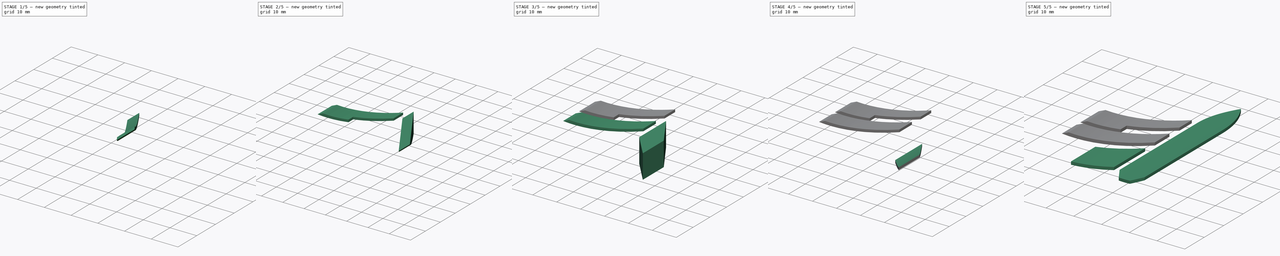
[diagram: build sequence overview — one tinted view per stage of 5, left to right]
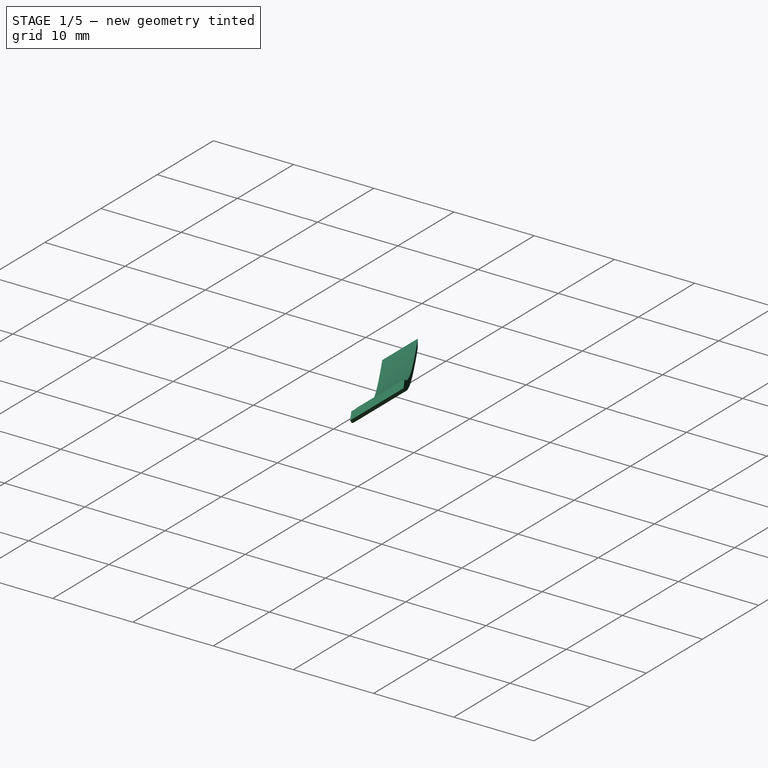
[diagram: stage 1 of 5 — iso view after this stage's code; geometry added in this stage tinted green]
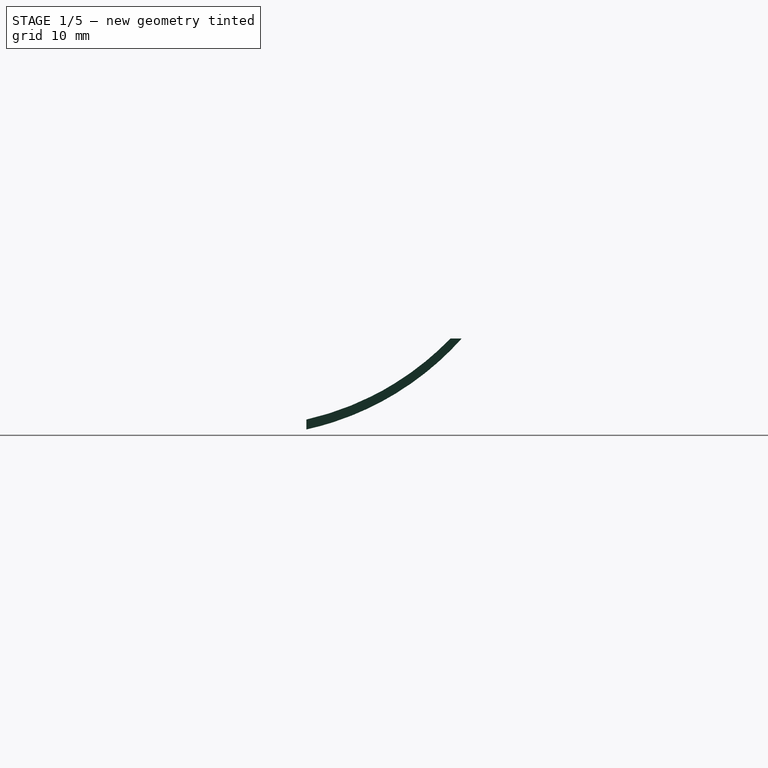
[diagram: stage 1 of 5 — front view after this stage's code; geometry added in this stage tinted green]
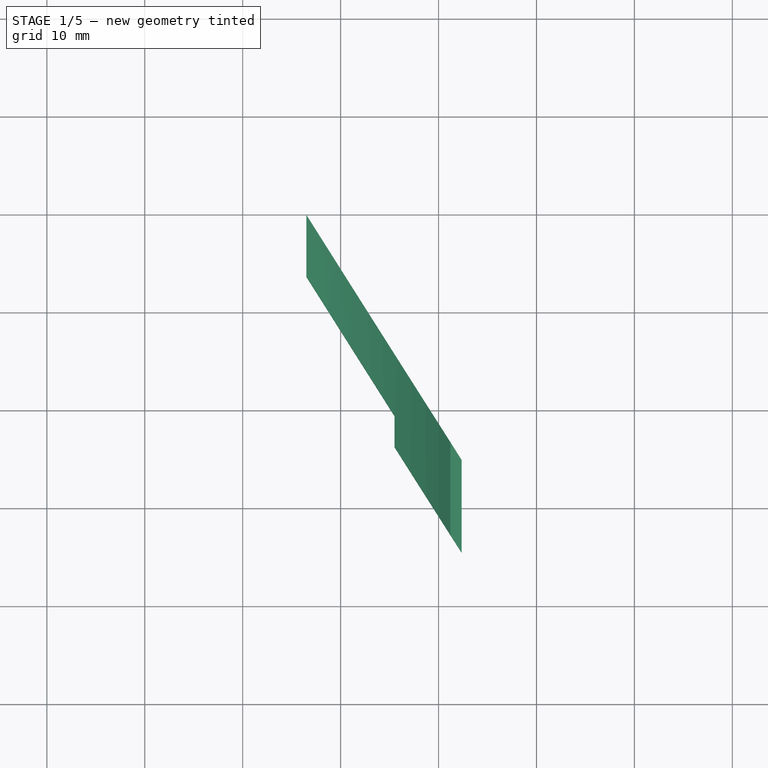
[diagram: stage 1 of 5 — top view after this stage's code; geometry added in this stage tinted green]
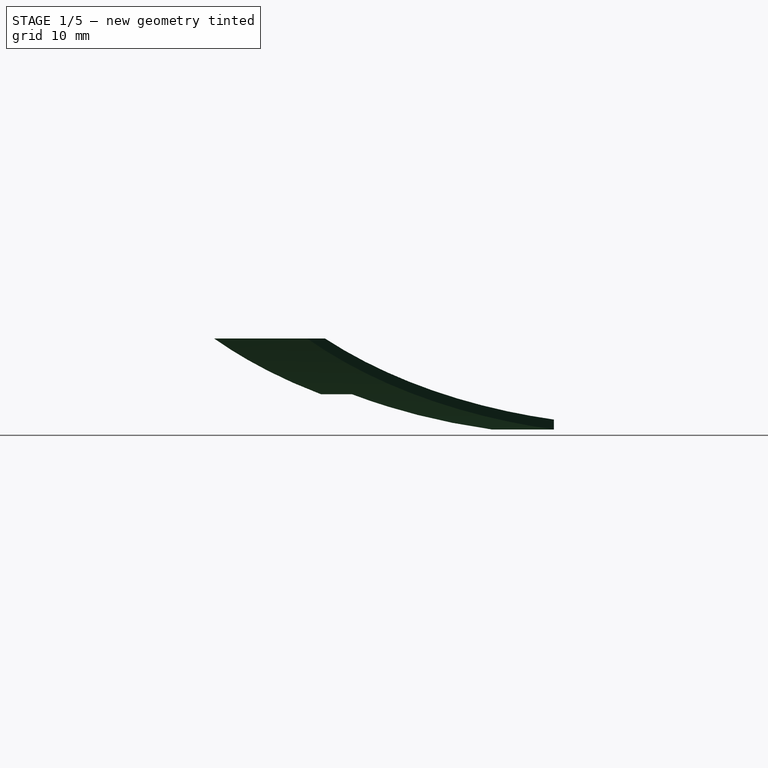
[diagram: stage 1 of 5 — right view after this stage's code; geometry added in this stage tinted green]
FCSTD DOCUMENT  (FreeCAD 1.0R39319 (Git))
Label: logo
License: All rights reserved
LicenseURL: https://en.wikipedia.org/wiki/All_rights_reserved
objects: Sketcher::SketchObject×13, PartDesign::Pocket×8, PartDesign::Body×7, PartDesign::Pad×4, PartDesign::Plane×4, PartDesign::FeatureBase×3, Part::Mirroring×3
note: 82 computed .brp shape members not serialized (recipe doc carries the construction recipe); baked Part::Feature solids carry a one-line shape summary decoded from their .brp

FEATURE [Sketcher::SketchObject] Sketch003
  ArcFitTolerance = 1e-06
  AttachmentSupport = -> [XY_Plane003]
  FullyConstrained = true
  MakeInternals = false
  MapMode = 5
  sketch-geometry (7):
    g0: LineSegment StartX=6.5 StartY=13.665 StartZ=0 EndX=6.5 EndY=19.995 EndZ=0
    g1: LineSegment StartX=6.5 StartY=19.995 StartZ=0 EndX=23.5 EndY=-7.005 EndZ=0
    g2: LineSegment StartX=23.5 StartY=-7.005 StartZ=0 EndX=23.5 EndY=-16.5 EndZ=0
    g3: LineSegment StartX=23.5 StartY=-16.5 StartZ=0 EndX=15.5 EndY=-3.79412 EndZ=0
    g4: LineSegment StartX=15.5 StartY=-3.79412 StartZ=0 EndX=15.5 EndY=-0.629118 EndZ=0
    g5: LineSegment StartX=15.5 StartY=-0.629118 StartZ=0 EndX=6.5 EndY=13.665 EndZ=0
    g6: LineSegment [constr] StartX=23.5 StartY=-18.5 StartZ=0 EndX=6.5 EndY=8.5 EndZ=0
  constraints (22):
    c: Coincident(g0,g1)
    c: Coincident(g1,g2)
    c: Coincident(g2,g3)
    c: Coincident(g3,g4)
    c: Coincident(g4,g5)
    c: Coincident(g5,g0)
    c: Vertical(g0)
    c: Vertical(g2)
    c: Vertical(g4)
    c: DistanceY(g0,g0) = 6.33
    c: DistanceY(g2,g1) = 9.495
    c: DistanceX(g-1,g0) = 6.5
    c: DistanceX(g0,g1) = 17
    c: Parallel(g5,g1)
    c: Parallel(g3,g1)
    c: DistanceY(g6,g-1) = 18.5
    c: DistanceX(g-1,g6) = 6.5
    c: DistanceX(g-1,g6) = 23.5
    c: DistanceY(g-1,g6) = 8.5
    c: Parallel(g3,g6)
    c: DistanceY(g6,g2) = 2
    c: DistanceX(g-1,g3) = 15.5
FEATURE [PartDesign::Pad] Pad003
  Direction = (0,0,1)
  Length = 10
  Length2 = 10
  Profile = -> Sketch003
  ReferenceAxis = -> Sketch003 [N_Axis]
  Refine = true
  Suppressed = false
  Type = 0
FEATURE [PartDesign::Body] Body002  label="mid_right_wing"
  AllowCompound = false
  Group = -> [Sketch002,Pad002,DatumPlane002,Sketch009,Pocket004,Sketch010,Pocket005]
  Origin = -> Origin002
  Tip = -> Pocket005
FEATURE [PartDesign::Plane] DatumPlane003
  AttachmentSupport = -> [Pad003]
  Length = 60
  MapMode = 7
  Placement = pos=(6.5,19.995,0) rot=(1,0,0;1.5708rad)
  ResizeMode = 0
  Width = 60
FEATURE [Sketcher::SketchObject] Sketch011
  ArcFitTolerance = 1e-06
  AttachmentSupport = -> [DatumPlane003]
  FullyConstrained = false
  MakeInternals = false
  MapMode = 5
  Placement = pos=(6.5,19.995,0) rot=(1,0,0;1.5708rad)
  sketch-geometry (2):
    g0: Circle CenterX=-6.5 CenterY=30 CenterZ=0 NormalX=0 NormalY=0 NormalZ=1 AngleXU=0 Radius=30
    g1: Circle CenterX=-6.5 CenterY=30 CenterZ=0 NormalX=0 NormalY=0 NormalZ=1 AngleXU=0 Radius=39.2924
  constraints (4):
    c: Diameter(g0) = 60
    c: Tangent(g0,g-1)
    c: DistanceX(g0,g-1) = 6.5
    c: Coincident(g1,g0)
FEATURE [PartDesign::Pocket] Pocket006
  BaseFeature = -> Pad003
  Direction = (0,1,-2e-16)
  Length = 5
  Length2 = 5
  Profile = -> Sketch011
  ReferenceAxis = -> Sketch011 [N_Axis]
  Refine = true
  Reversed = true
  Suppressed = false
  Type = 1
FEATURE [Sketcher::SketchObject] Sketch012
  ArcFitTolerance = 1e-06
  AttachmentSupport = -> [DatumPlane003]
  FullyConstrained = true
  MakeInternals = false
  MapMode = 5
  Placement = pos=(6.5,19.995,0) rot=(1,0,0;1.5708rad)
  sketch-geometry (2):
    g0: Circle CenterX=-6.5 CenterY=30.5 CenterZ=0 NormalX=0 NormalY=0 NormalZ=1 AngleXU=0 Radius=29.5
    g1: LineSegment [constr] StartX=-6.5 StartY=30.5 StartZ=0 EndX=-6.5 EndY=1 EndZ=0
  constraints (6):
    c: Diameter(g0) = 59
    c: Coincident(g1,g0)
    c: PointOnObject(g1,g0)
    c: Vertical(g1)
    c: DistanceX(g0,g-1) = 6.5
    c: DistanceY(g-1,g1) = 1
FEATURE [PartDesign::Pocket] Pocket007
  BaseFeature = -> Pocket006
  Direction = (0,1,-2e-16)
  Length = 5
  Length2 = 5
  Profile = -> Sketch012
  ReferenceAxis = -> Sketch012 [N_Axis]
  Refine = true
  Reversed = true
  Suppressed = false
  Type = 1
FEATURE [PartDesign::FeatureBase] Clone002
  BaseFeature = -> Body003
  Suppressed = false
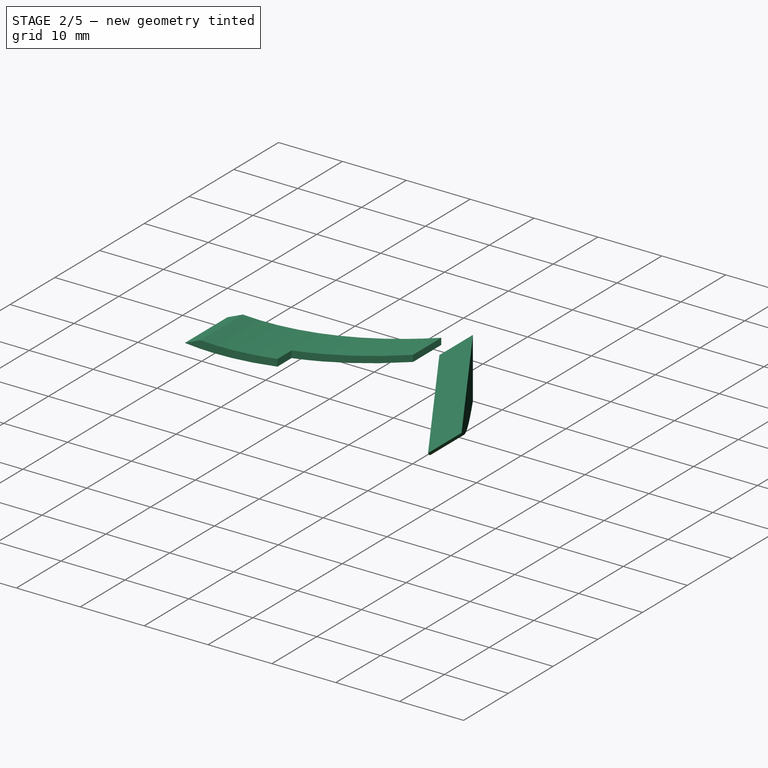
[diagram: stage 2 of 5 — iso view after this stage's code; geometry added in this stage tinted green]
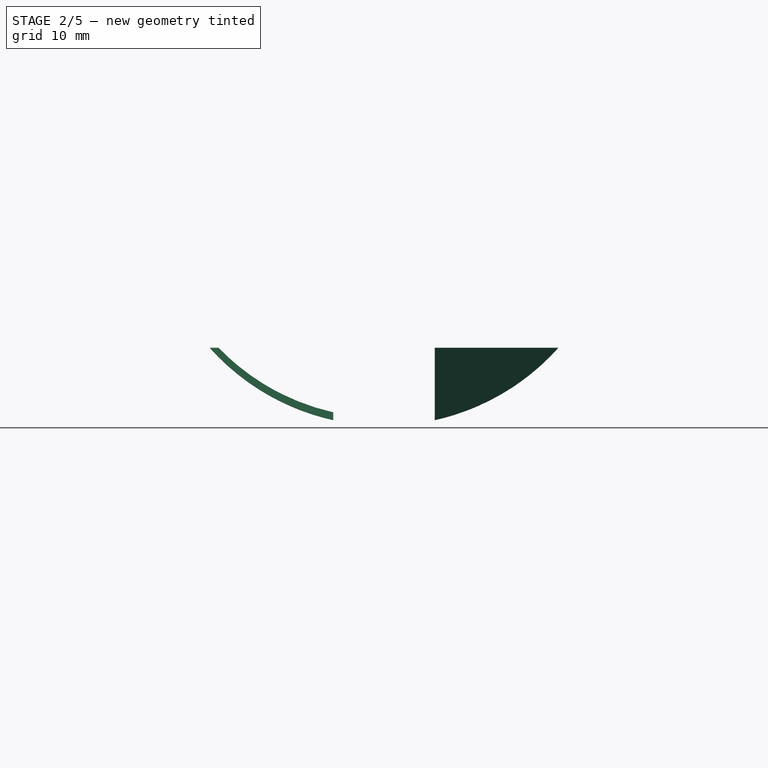
[diagram: stage 2 of 5 — front view after this stage's code; geometry added in this stage tinted green]
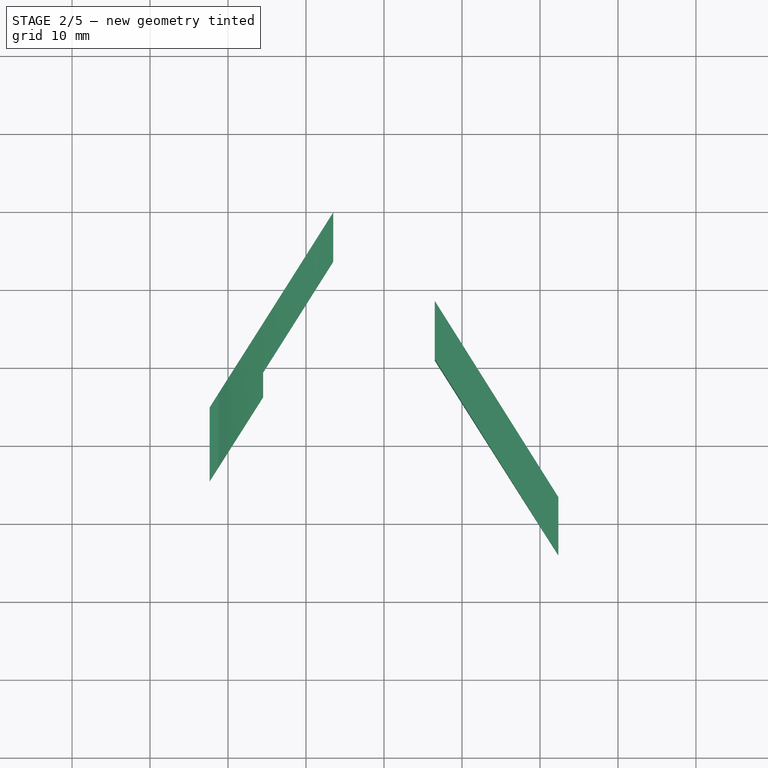
[diagram: stage 2 of 5 — top view after this stage's code; geometry added in this stage tinted green]
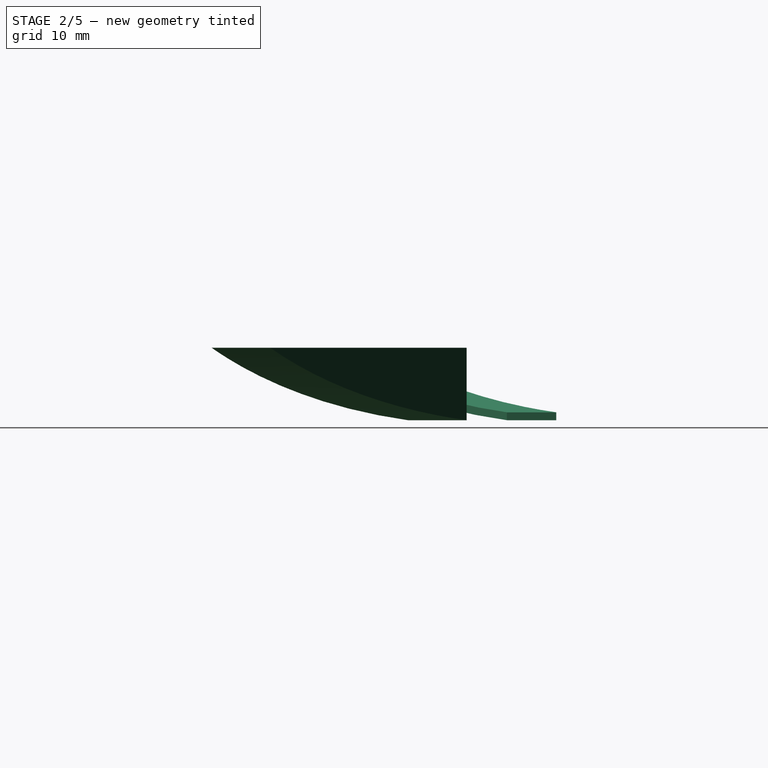
[diagram: stage 2 of 5 — right view after this stage's code; geometry added in this stage tinted green]
FEATURE [Sketcher::SketchObject] Sketch002
  ArcFitTolerance = 1e-06
  AttachmentSupport = -> [XY_Plane002]
  FullyConstrained = true
  MakeInternals = false
  MapMode = 5
  sketch-geometry (4):
    g0: LineSegment StartX=6.5 StartY=1 StartZ=0 EndX=6.5 EndY=8.5 EndZ=0
    g1: LineSegment StartX=6.5 StartY=8.5 StartZ=0 EndX=23.5 EndY=-18.5 EndZ=0
    g2: LineSegment StartX=23.5 StartY=-18.5 StartZ=0 EndX=23.5 EndY=-26 EndZ=0
    g3: LineSegment StartX=23.5 StartY=-26 StartZ=0 EndX=6.5 EndY=1 EndZ=0
  constraints (12):
    c: Coincident(g0,g1)
    c: Coincident(g1,g2)
    c: Coincident(g2,g3)
    c: Coincident(g3,g0)
    c: Vertical(g0)
    c: Vertical(g2)
    c: Parallel(g1,g3)
    c: DistanceX(g0,g1) = 17
    c: DistanceY(g2,g1) = 7.5
    c: DistanceX(g-1,g0) = 6.5
    c: DistanceY(g-1,g0) = 1
    c: DistanceY(g2,g0) = 34.5
FEATURE [PartDesign::Pad] Pad002
  Direction = (0,0,1)
  Length = 10
  Length2 = 10
  Profile = -> Sketch002
  ReferenceAxis = -> Sketch002 [N_Axis]
  Refine = true
  Suppressed = false
  Type = 0
FEATURE [PartDesign::Body] Body001  label="lower_right_wing"
  AllowCompound = false
  Group = -> [Sketch001,Pad001,DatumPlane001,Sketch007,Pocket002,Sketch008,Pocket003]
  Origin = -> Origin001
  Tip = -> Pocket003
FEATURE [PartDesign::Plane] DatumPlane002
  AttachmentSupport = -> [Pad002]
  Length = 60
  MapMode = 7
  Placement = pos=(6.5,8.5,0) rot=(1,0,0;1.5708rad)
  ResizeMode = 0
  Width = 60
FEATURE [Sketcher::SketchObject] Sketch009
  ArcFitTolerance = 1e-06
  AttachmentSupport = -> [DatumPlane002]
  FullyConstrained = false
  MakeInternals = false
  MapMode = 5
  Placement = pos=(6.5,8.5,0) rot=(1,0,0;1.5708rad)
  sketch-geometry (2):
    g0: Circle CenterX=-6.5 CenterY=30 CenterZ=0 NormalX=0 NormalY=0 NormalZ=1 AngleXU=0 Radius=30
    g1: Circle CenterX=-6.5 CenterY=30 CenterZ=0 NormalX=0 NormalY=0 NormalZ=1 AngleXU=0 Radius=40.2472
  constraints (4):
    c: Diameter(g0) = 60
    c: Tangent(g0,g-1)
    c: DistanceX(g0,g-1) = 6.5
    c: Coincident(g1,g0)
FEATURE [PartDesign::Pocket] Pocket004
  BaseFeature = -> Pad002
  Direction = (0,1,-2e-16)
  Length = 5
  Length2 = 5
  Profile = -> Sketch009
  ReferenceAxis = -> Sketch009 [N_Axis]
  Refine = true
  Reversed = true
  Suppressed = false
  Type = 1
FEATURE [PartDesign::Body] Body006
  AllowCompound = false
  Group = -> [Clone002]
  Origin = -> Origin006
  Tip = -> Clone002
FEATURE [Part::Mirroring] Part__Mirroring002  label="upper_left_wing"
  Base = (0,0,0)
  Normal = (1,0,0)
  Source = -> Body006
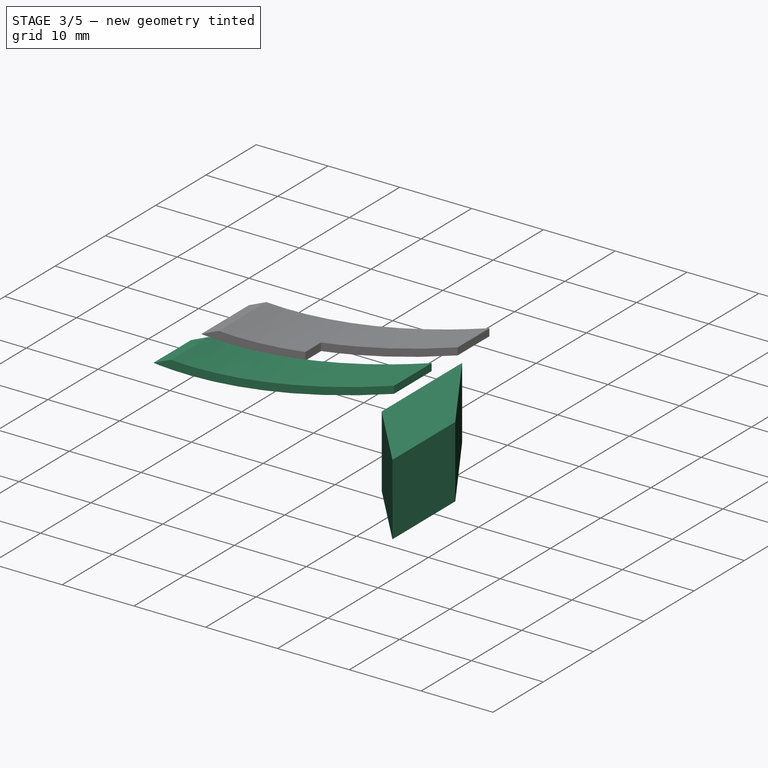
[diagram: stage 3 of 5 — iso view after this stage's code; geometry added in this stage tinted green]
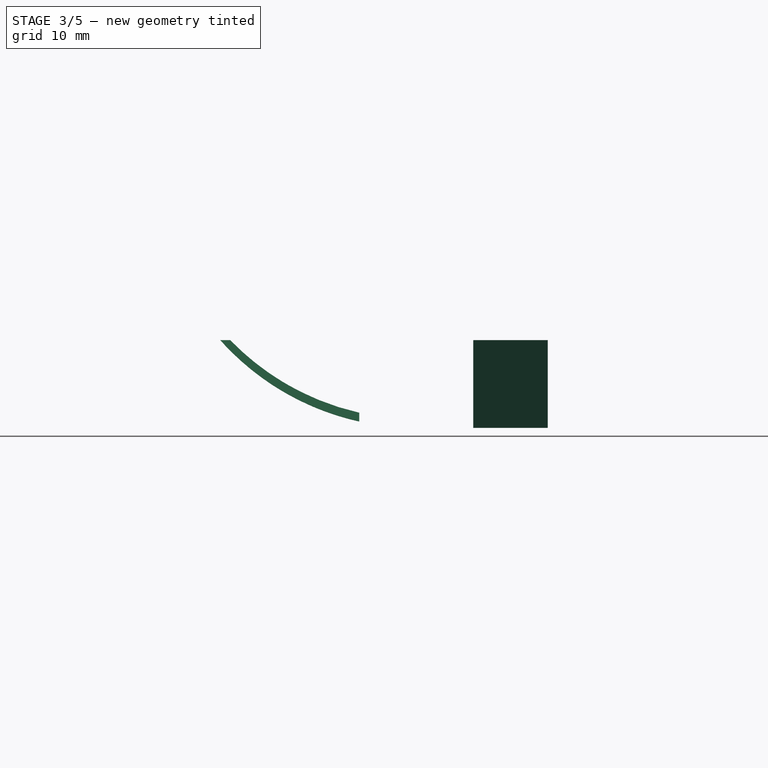
[diagram: stage 3 of 5 — front view after this stage's code; geometry added in this stage tinted green]
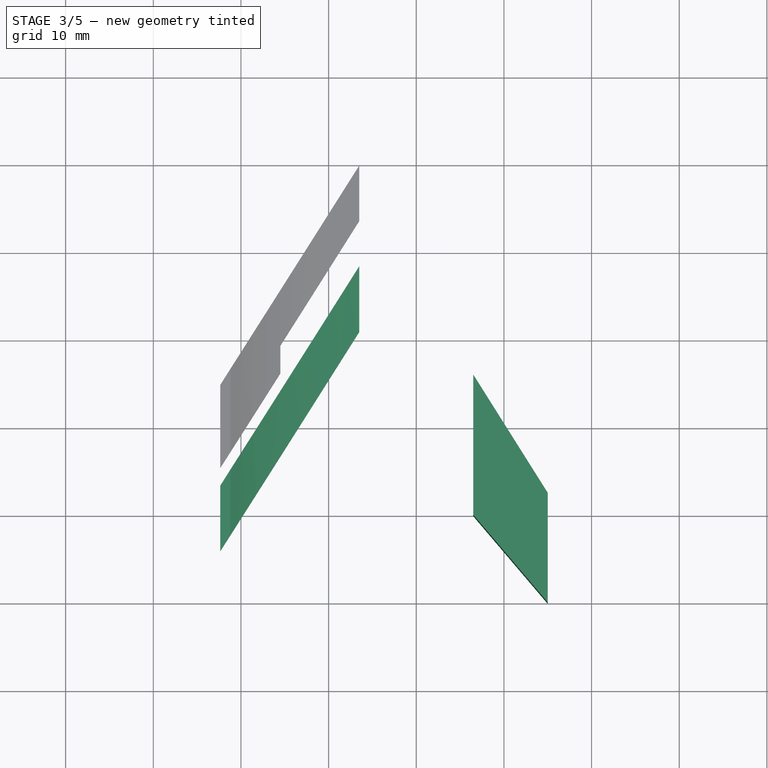
[diagram: stage 3 of 5 — top view after this stage's code; geometry added in this stage tinted green]
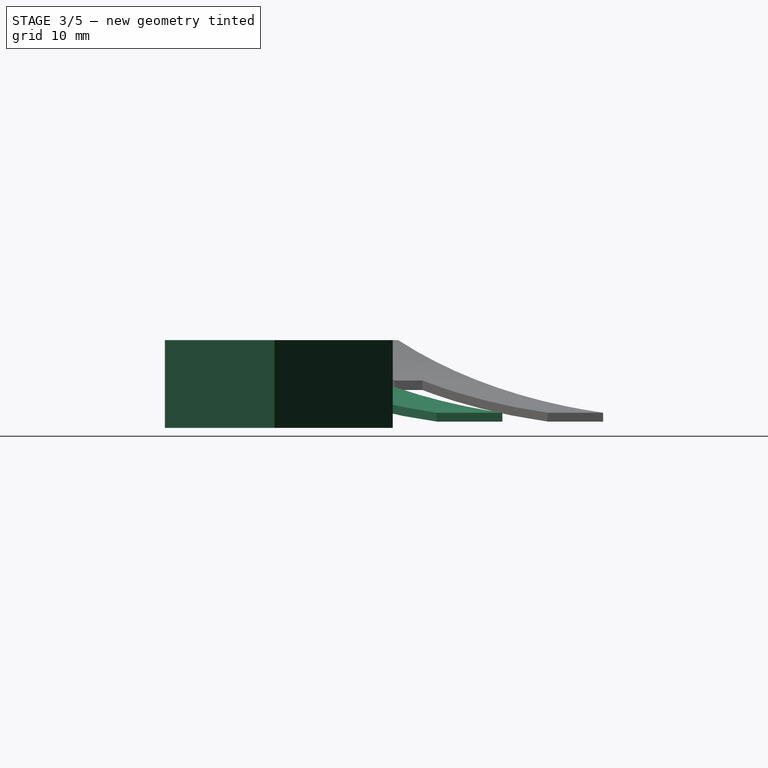
[diagram: stage 3 of 5 — right view after this stage's code; geometry added in this stage tinted green]
FEATURE [Sketcher::SketchObject] Sketch001
  ArcFitTolerance = 1e-06
  AttachmentSupport = -> [XY_Plane001]
  FullyConstrained = true
  MakeInternals = false
  MapMode = 5
  sketch-geometry (4):
    g0: LineSegment StartX=6.5 StartY=-20 StartZ=0 EndX=6.5 EndY=-4 EndZ=0
    g1: LineSegment StartX=6.5 StartY=-4 StartZ=0 EndX=15 EndY=-17.5 EndZ=0
    g2: LineSegment StartX=15 StartY=-17.5 StartZ=0 EndX=15 EndY=-30 EndZ=0
    g3: LineSegment StartX=15 StartY=-30 StartZ=0 EndX=6.5 EndY=-20 EndZ=0
  constraints (12):
    c: Coincident(g0,g1)
    c: Coincident(g1,g2)
    c: Coincident(g2,g3)
    c: Coincident(g3,g0)
    c: DistanceX(g-1,g0) = 6.5
    c: Vertical(g0)
    c: Vertical(g2)
    c: DistanceX(g0,g1) = 8.5
    c: DistanceY(g2,g1) = 12.5
    c: Distance(g0,g0) = 16
    c: DistanceY(g2,g0) = 10
    c: DistanceY(g0,g-1) = 20
FEATURE [PartDesign::Pad] Pad001
  Direction = (0,0,1)
  Length = 10
  Length2 = 10
  Profile = -> Sketch001
  ReferenceAxis = -> Sketch001 [N_Axis]
  Refine = true
  Suppressed = false
  Type = 0
FEATURE [Sketcher::SketchObject] Sketch010
  ArcFitTolerance = 1e-06
  AttachmentSupport = -> [DatumPlane002]
  FullyConstrained = true
  MakeInternals = false
  MapMode = 5
  Placement = pos=(6.5,8.5,0) rot=(1,0,0;1.5708rad)
  sketch-geometry (2):
    g0: Circle CenterX=-6.5 CenterY=30.5 CenterZ=0 NormalX=0 NormalY=0 NormalZ=1 AngleXU=0 Radius=29.5
    g1: LineSegment [constr] StartX=-6.5 StartY=30.5 StartZ=0 EndX=-6.5 EndY=1 EndZ=0
  constraints (6):
    c: Diameter(g0) = 59
    c: DistanceX(g0,g-1) = 6.5
    c: Coincident(g1,g0)
    c: PointOnObject(g1,g0)
    c: Vertical(g1)
    c: DistanceY(g-1,g1) = 1
FEATURE [PartDesign::Pocket] Pocket005
  BaseFeature = -> Pocket004
  Direction = (0,1,-2e-16)
  Length = 5
  Length2 = 5
  Profile = -> Sketch010
  ReferenceAxis = -> Sketch010 [N_Axis]
  Refine = true
  Reversed = true
  Suppressed = false
  Type = 1
FEATURE [PartDesign::FeatureBase] Clone001
  BaseFeature = -> Body002
  Suppressed = false
FEATURE [PartDesign::Body] Body005
  AllowCompound = false
  Group = -> [Clone001]
  Origin = -> Origin005
  Tip = -> Clone001
FEATURE [Part::Mirroring] Part__Mirroring001  label="mid_left_wing"
  Base = (0,0,0)
  Normal = (1,0,0)
  Source = -> Body005
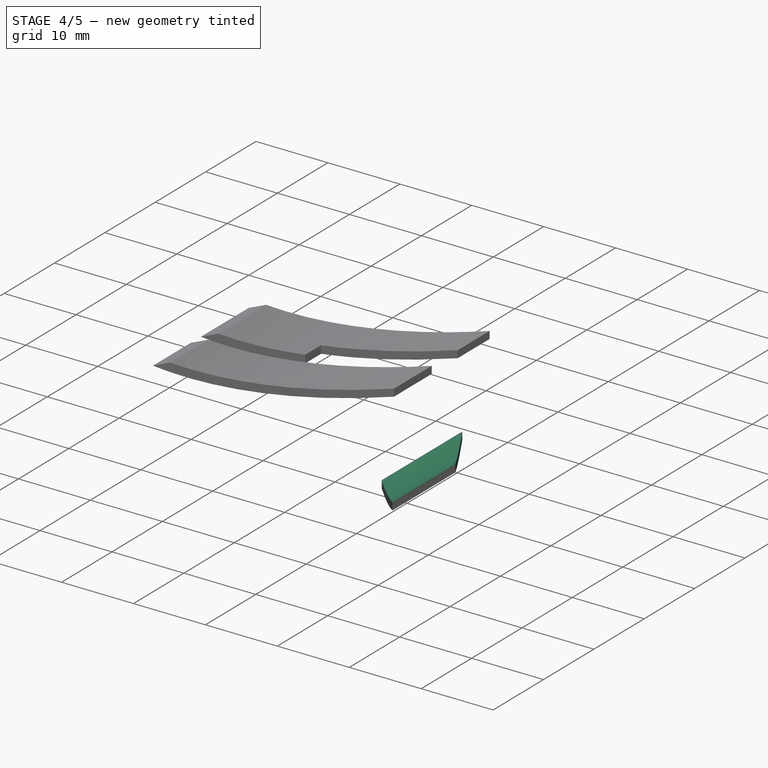
[diagram: stage 4 of 5 — iso view after this stage's code; geometry added in this stage tinted green]
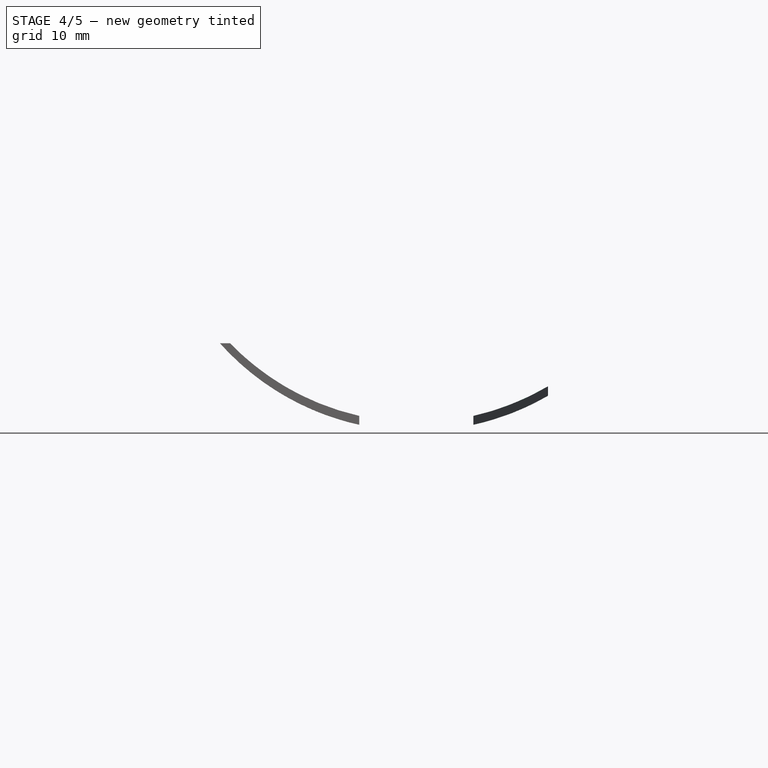
[diagram: stage 4 of 5 — front view after this stage's code; geometry added in this stage tinted green]
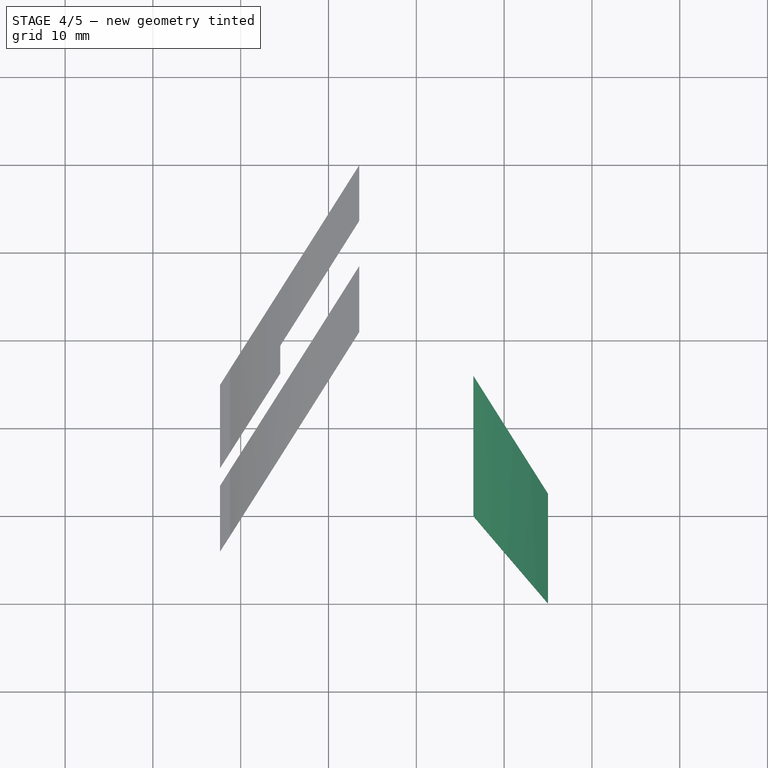
[diagram: stage 4 of 5 — top view after this stage's code; geometry added in this stage tinted green]
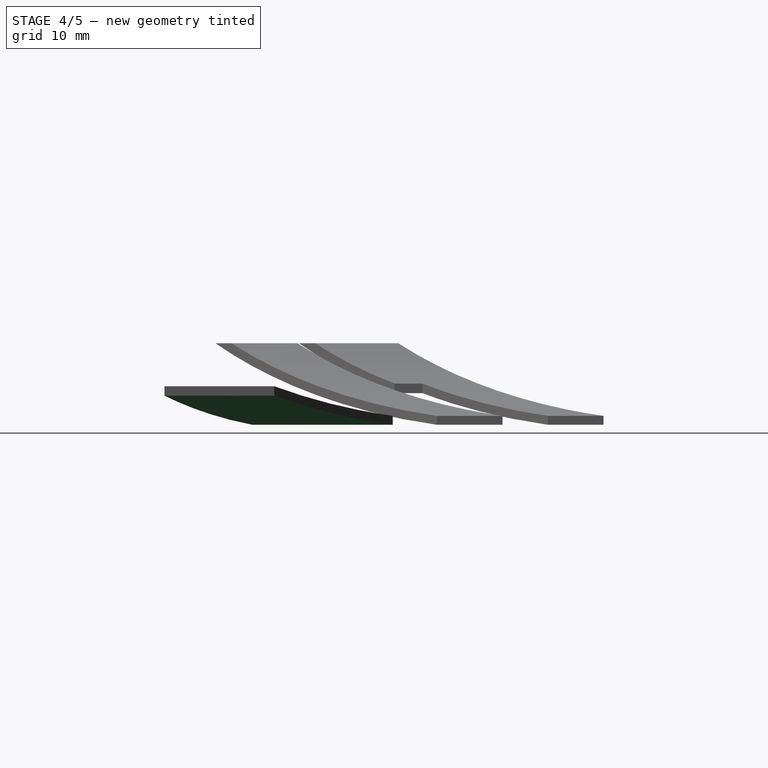
[diagram: stage 4 of 5 — right view after this stage's code; geometry added in this stage tinted green]
FEATURE [PartDesign::Body] Body  label="main_body"
  AllowCompound = false
  Group = -> [Sketch,Pad,Sketch004,DatumPlane,Sketch005,Pocket,Sketch006,Pocket001]
  Origin = -> Origin
  Tip = -> Pocket001
FEATURE [PartDesign::Plane] DatumPlane001
  AttachmentSupport = -> [Pad001]
  Length = 60
  MapMode = 7
  Placement = pos=(6.5,-4,0) rot=(1,0,0;1.5708rad)
  ResizeMode = 0
  Width = 60
FEATURE [Sketcher::SketchObject] Sketch007
  ArcFitTolerance = 1e-06
  AttachmentSupport = -> [DatumPlane001]
  FullyConstrained = false
  MakeInternals = false
  MapMode = 5
  Placement = pos=(6.5,-4,0) rot=(1,0,0;1.5708rad)
  sketch-geometry (2):
    g0: Circle CenterX=-6.5 CenterY=30 CenterZ=0 NormalX=0 NormalY=0 NormalZ=1 AngleXU=0 Radius=30
    g1: Circle CenterX=-6.5 CenterY=30 CenterZ=0 NormalX=0 NormalY=0 NormalZ=1 AngleXU=0 Radius=41.3921
  constraints (4):
    c: Diameter(g0) = 60
    c: Tangent(g0,g-1)
    c: DistanceX(g0,g-1) = 6.5
    c: Coincident(g1,g0)
FEATURE [PartDesign::Pocket] Pocket002
  BaseFeature = -> Pad001
  Direction = (0,1,-2e-16)
  Length = 5
  Length2 = 5
  Profile = -> Sketch007
  ReferenceAxis = -> Sketch007 [N_Axis]
  Refine = true
  Reversed = true
  Suppressed = false
  Type = 1
FEATURE [Sketcher::SketchObject] Sketch008
  ArcFitTolerance = 1e-06
  AttachmentSupport = -> [DatumPlane001]
  FullyConstrained = true
  MakeInternals = false
  MapMode = 5
  Placement = pos=(6.5,-4,0) rot=(1,0,0;1.5708rad)
  sketch-geometry (3):
    g0: Circle CenterX=-6.5 CenterY=30.5 CenterZ=0 NormalX=0 NormalY=0 NormalZ=1 AngleXU=0 Radius=29.5
    g1: LineSegment [constr] StartX=-6.5 StartY=30.5 StartZ=0 EndX=-6.5 EndY=1 EndZ=0
    g2: GeomPoint [constr] X=-6.5 Y=1 Z=0
  constraints (8):
    c: Diameter(g0) = 59
    c: DistanceX(g0,g-1) = 6.5
    c: Coincident(g1,g0)
    c: PointOnObject(g1,g0)
    c: Vertical(g1)
    c: PointOnObject(g2,g0)
    c: PointOnObject(g2,g1)
    c: DistanceY(g-1,g1) = 1
FEATURE [PartDesign::Pocket] Pocket003
  BaseFeature = -> Pocket002
  Direction = (0,1,-2e-16)
  Length = 5
  Length2 = 5
  Profile = -> Sketch008
  ReferenceAxis = -> Sketch008 [N_Axis]
  Refine = true
  Reversed = true
  Suppressed = false
  Type = 1
FEATURE [PartDesign::Body] Body003  label="upper_right_wing"
  AllowCompound = false
  Group = -> [Sketch003,Pad003,DatumPlane003,Sketch011,Pocket006,Sketch012,Pocket007]
  Origin = -> Origin003
  Tip = -> Pocket007
FEATURE [PartDesign::FeatureBase] Clone
  BaseFeature = -> Body001
  Suppressed = false
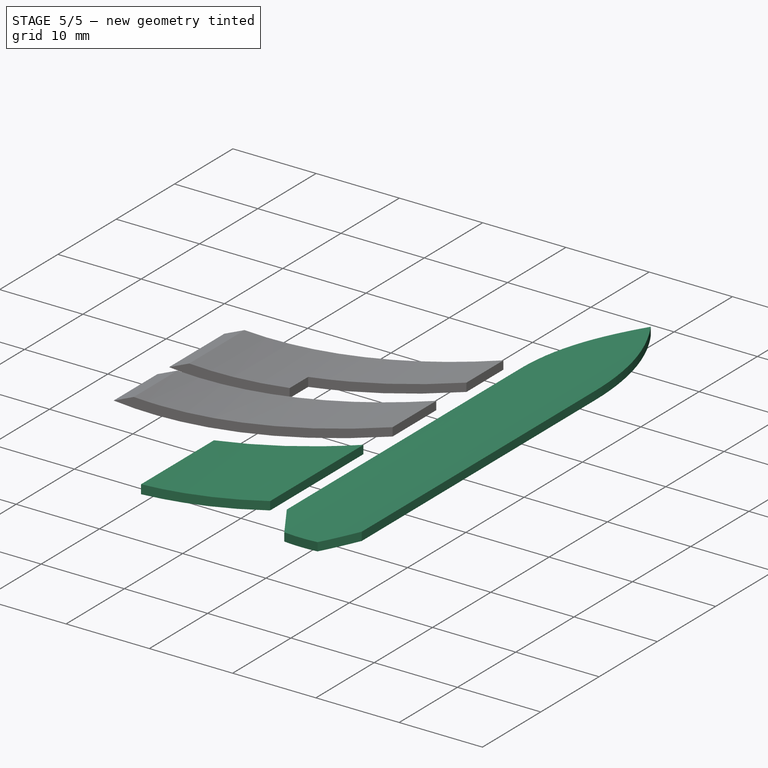
[diagram: stage 5 of 5 — iso view after this stage's code; geometry added in this stage tinted green]
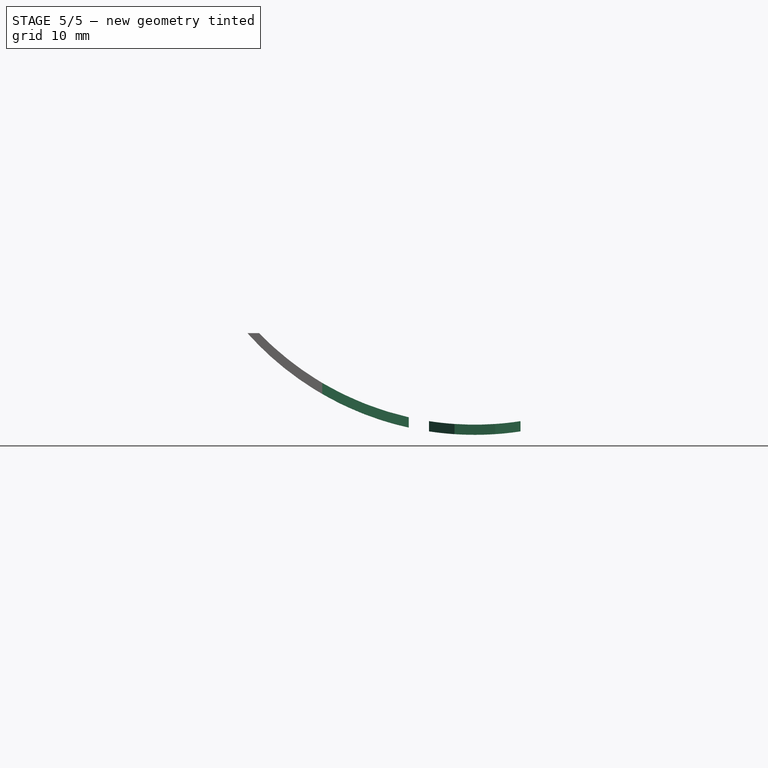
[diagram: stage 5 of 5 — front view after this stage's code; geometry added in this stage tinted green]
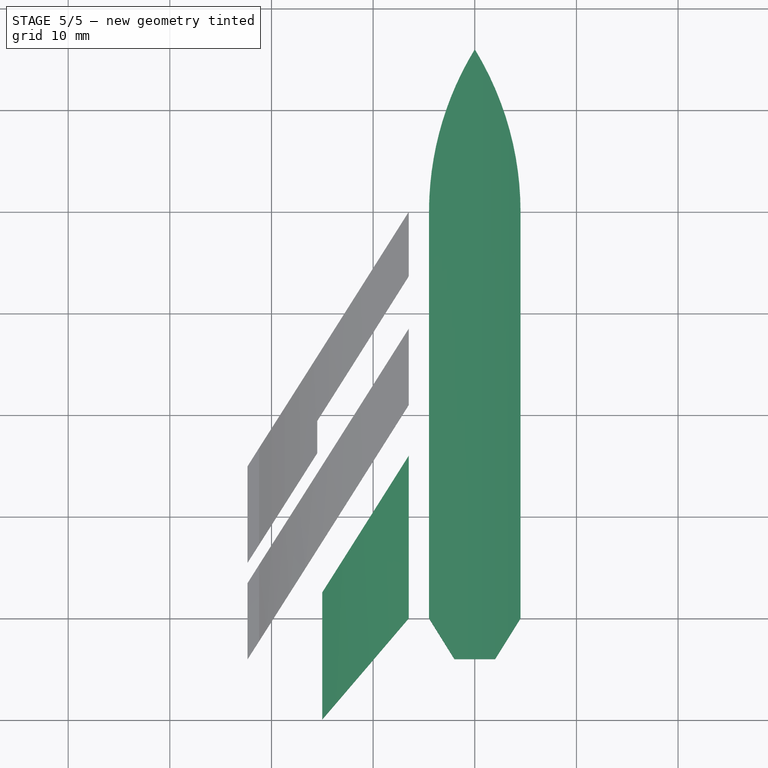
[diagram: stage 5 of 5 — top view after this stage's code; geometry added in this stage tinted green]
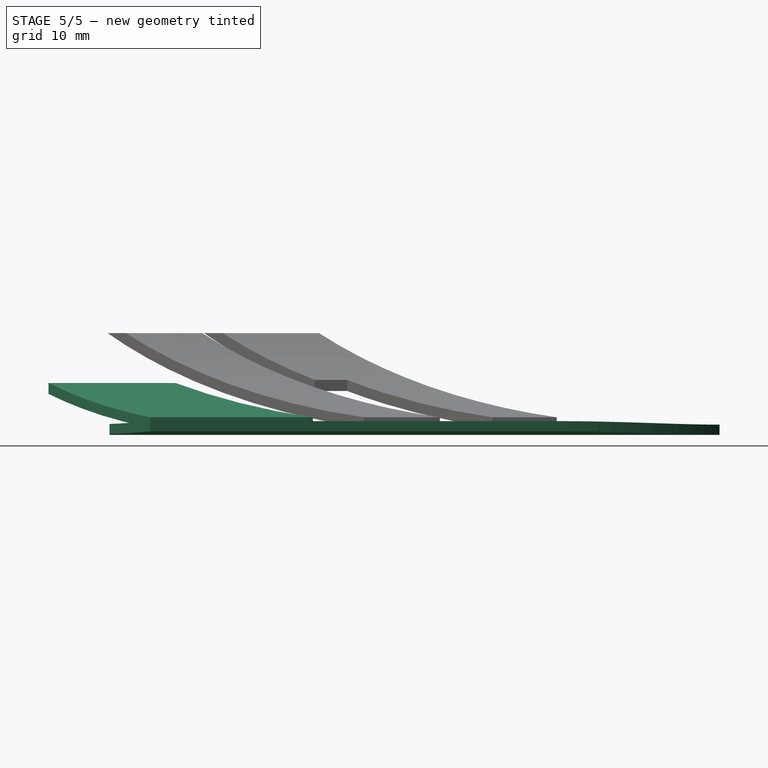
[diagram: stage 5 of 5 — right view after this stage's code; geometry added in this stage tinted green]
FEATURE [Sketcher::SketchObject] Sketch
  ArcFitTolerance = 1e-06
  AttachmentSupport = -> [XY_Plane]
  FullyConstrained = true
  MakeInternals = false
  MapMode = 5
  sketch-geometry (11):
    g0: LineSegment StartX=-4.5 StartY=20 StartZ=0 EndX=-4.5 EndY=-20 EndZ=0
    g1: LineSegment StartX=4.5 StartY=-20 StartZ=0 EndX=4.5 EndY=20 EndZ=0
    g2: LineSegment [constr] StartX=-4.5 StartY=20 StartZ=0 EndX=4.5 EndY=-20 EndZ=0
    g3: LineSegment [constr] StartX=4.5 StartY=20 StartZ=0 EndX=-4.5 EndY=-20 EndZ=0
    g4: GeomPoint [constr] X=0 Y=0 Z=0
    g5: GeomPoint [constr] X=0 Y=36 Z=0
    g6: ArcOfCircle CenterX=26.1944 CenterY=20 CenterZ=0 NormalX=0 NormalY=0 NormalZ=1 AngleXU=0 Radius=30.6944 StartAngle=2.59326 EndAngle=3.14159
    g7: ArcOfCircle CenterX=-26.1944 CenterY=20 CenterZ=0 NormalX=0 NormalY=0 NormalZ=1 AngleXU=0 Radius=30.6944 StartAngle=0 EndAngle=0.548335
    g8: LineSegment StartX=-4.5 StartY=-20 StartZ=0 EndX=-2 EndY=-24 EndZ=0
    g9: LineSegment StartX=-2 StartY=-24 StartZ=0 EndX=2 EndY=-24 EndZ=0
    g10: LineSegment StartX=2 StartY=-24 StartZ=0 EndX=4.5 EndY=-20 EndZ=0
  constraints (24):
    c: Vertical(g0)
    c: DistanceX(g0,g1) = 9
    c: DistanceY(g1,g1) = 40
    c: Coincident(g2,g0)
    c: Coincident(g3,g1)
    c: Coincident(g3,g0)
    c: PointOnObject(g4,g2)
    c: Coincident(g4,g-1)
    c: PointOnObject(g5,g-2)
    c: DistanceY(g1,g5) = 16
    c: Coincident(g6,g5)
    c: Coincident(g7,g5)
    c: Tangent(g6,g0) = -1.5708
    c: Tangent(g7,g1) = -1.5708
    c: Symmetric(g1,g0,g-2)
    c: Coincident(g0,g8)
    c: Coincident(g8,g9)
    c: Coincident(g9,g10)
    c: DistanceY(g8,g0) = 4
    c: Symmetric(g8,g9,g-2)
    c: DistanceX(g8,g9) = 4
    c: Coincident(g10,g1)
    c: Symmetric(g1,g0,g-2)
    c: Coincident(g2,g1)
FEATURE [PartDesign::Pad] Pad
  Direction = (0,0,1)
  Length = 10
  Length2 = 10
  Profile = -> Sketch
  ReferenceAxis = -> Sketch [N_Axis]
  Refine = true
  Suppressed = false
  Type = 0
FEATURE [Sketcher::SketchObject] Sketch004
  ArcFitTolerance = 1e-06
  AttachmentSupport = -> [Pad]
  ExternalGeometry = -> [Pad]
  FullyConstrained = true
  MakeInternals = false
  MapMode = 5
  Placement = pos=(0,0,0) rot=(1,0,0;3.14159rad)
  sketch-geometry (1):
    g0: LineSegment StartX=0 StartY=-36 StartZ=0 EndX=0 EndY=0 EndZ=0
  constraints (2):
    c: Coincident(g0,g-4)
    c: Coincident(g0,g-1)
FEATURE [PartDesign::Plane] DatumPlane
  AttachmentSupport = -> [Sketch004]
  Length = 60
  MapMode = 7
  Placement = pos=(0,36,0) rot=(0,0.707107,0.707107;3.14159rad)
  ResizeMode = 0
  Width = 60
FEATURE [Sketcher::SketchObject] Sketch005
  ArcFitTolerance = 1e-06
  AttachmentSupport = -> [DatumPlane]
  FullyConstrained = false
  MakeInternals = false
  MapMode = 5
  Placement = pos=(0,36,0) rot=(0,0.707107,0.707107;3.14159rad)
  sketch-geometry (2):
    g0: Circle CenterX=0 CenterY=30 CenterZ=0 NormalX=0 NormalY=0 NormalZ=1 AngleXU=0 Radius=30
    g1: Circle CenterX=0 CenterY=30 CenterZ=0 NormalX=0 NormalY=0 NormalZ=1 AngleXU=0 Radius=39.8202
  constraints (4):
    c: Diameter(g0) = 60
    c: PointOnObject(g0,g-2)
    c: Coincident(g1,g0)
    c: Tangent(g0,g-1)
FEATURE [PartDesign::Pocket] Pocket
  BaseFeature = -> Pad
  Direction = (0,-1,2e-16)
  Length = 5
  Length2 = 5
  Profile = -> Sketch005
  ReferenceAxis = -> Sketch005 [N_Axis]
  Refine = true
  Suppressed = false
  Type = 1
FEATURE [Sketcher::SketchObject] Sketch006
  ArcFitTolerance = 1e-06
  AttachmentSupport = -> [DatumPlane]
  FullyConstrained = true
  MakeInternals = false
  MapMode = 5
  Placement = pos=(0,36,0) rot=(0,0.707107,0.707107;3.14159rad)
  sketch-geometry (2):
    g0: Circle CenterX=0 CenterY=30.5 CenterZ=0 NormalX=0 NormalY=0 NormalZ=1 AngleXU=0 Radius=29.5
    g1: GeomPoint X=0 Y=1 Z=0
  constraints (5):
    c: Diameter(g0) = 59
    c: PointOnObject(g0,g-2)
    c: PointOnObject(g1,g0)
    c: PointOnObject(g1,g-2)
    c: DistanceY(g-1,g1) = 1
FEATURE [PartDesign::Pocket] Pocket001
  BaseFeature = -> Pocket
  Direction = (0,-1,2e-16)
  Length = 5
  Length2 = 5
  Profile = -> Sketch006
  ReferenceAxis = -> Sketch006 [N_Axis]
  Refine = true
  Suppressed = false
  Type = 1
FEATURE [PartDesign::Body] Body004
  AllowCompound = false
  Group = -> [Clone]
  Origin = -> Origin004
  Tip = -> Clone
FEATURE [Part::Mirroring] Part__Mirroring  label="lower_left_wing"
  Base = (0,0,0)
  Normal = (1,0,0)
  Source = -> Body004
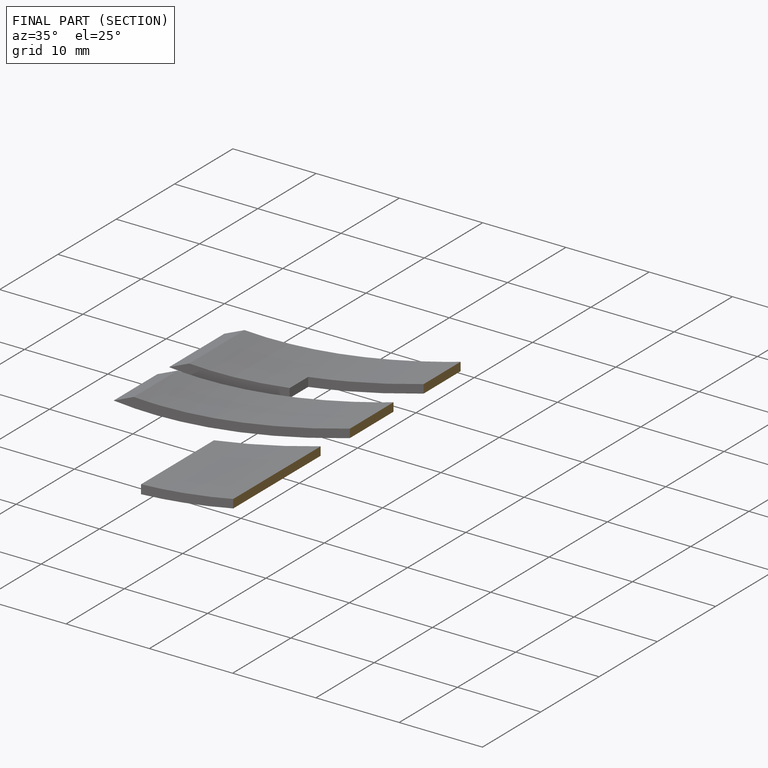
[diagram: finished part — half-section view (interior)]
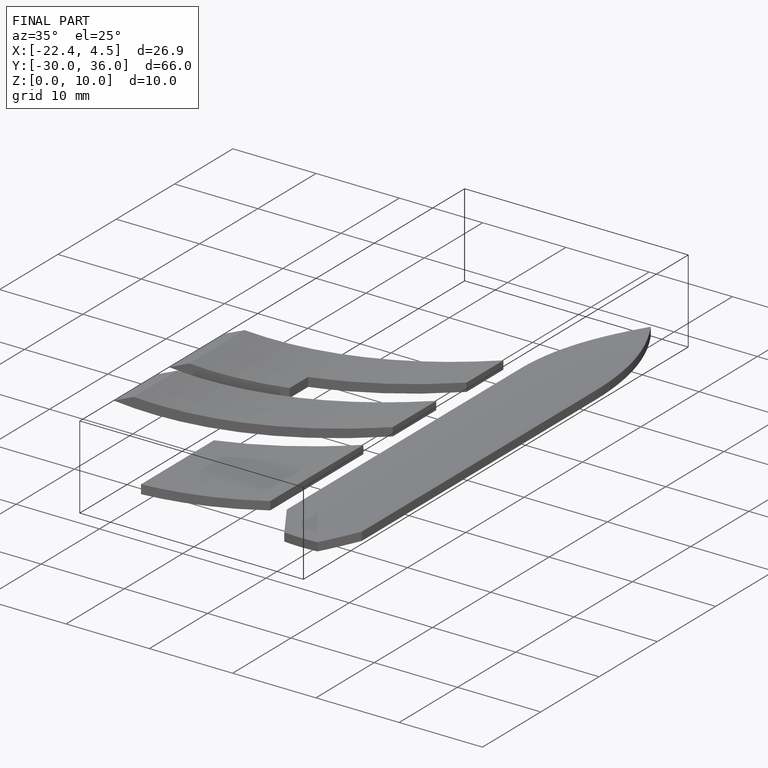
[diagram: finished part — iso view with bounding-box wireframe]
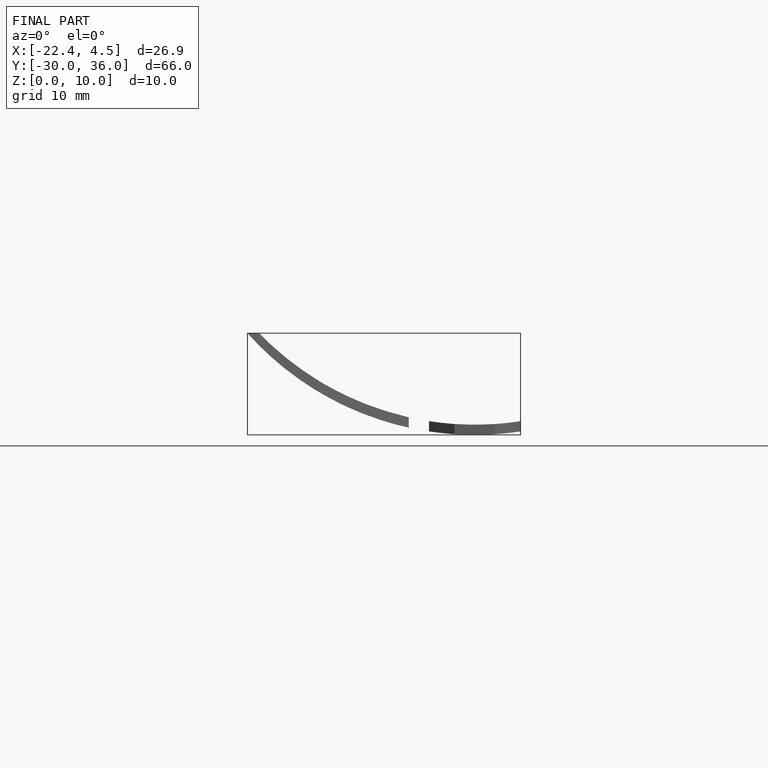
[diagram: finished part — front view with bounding-box wireframe]
